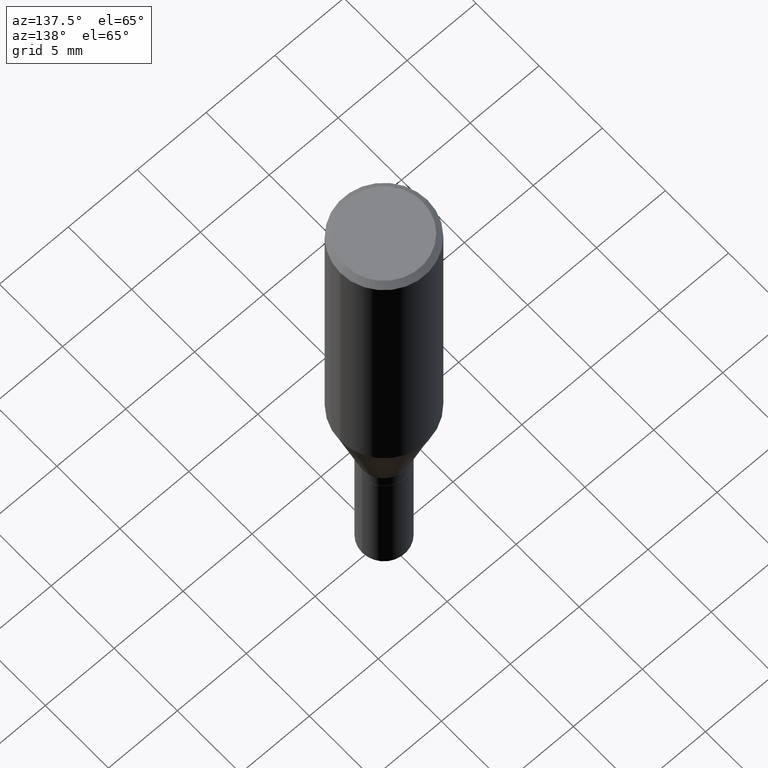
[diagram: clean part render]
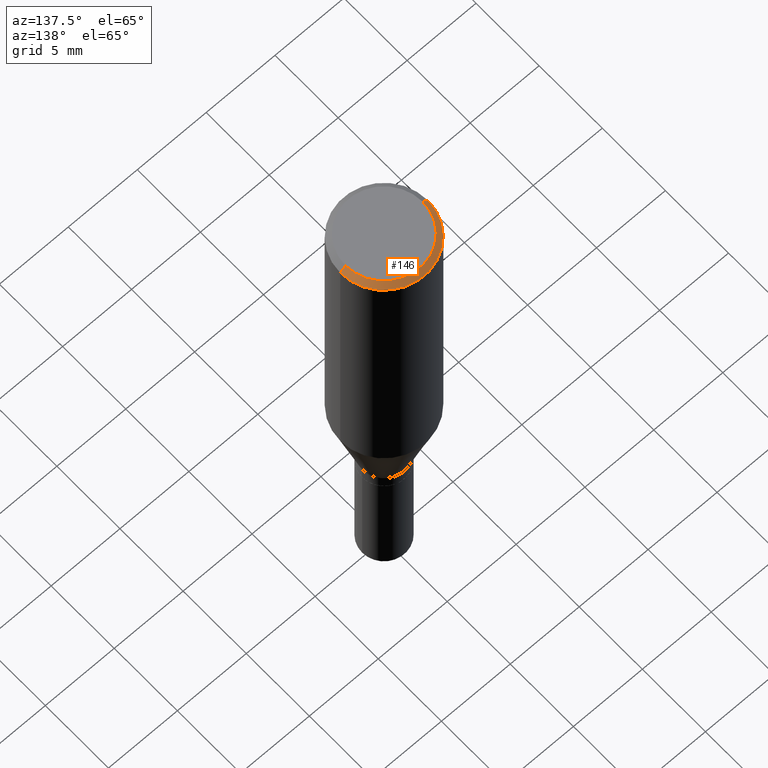
[diagram: same view with one face highlighted and labeled with its STEP entity id]
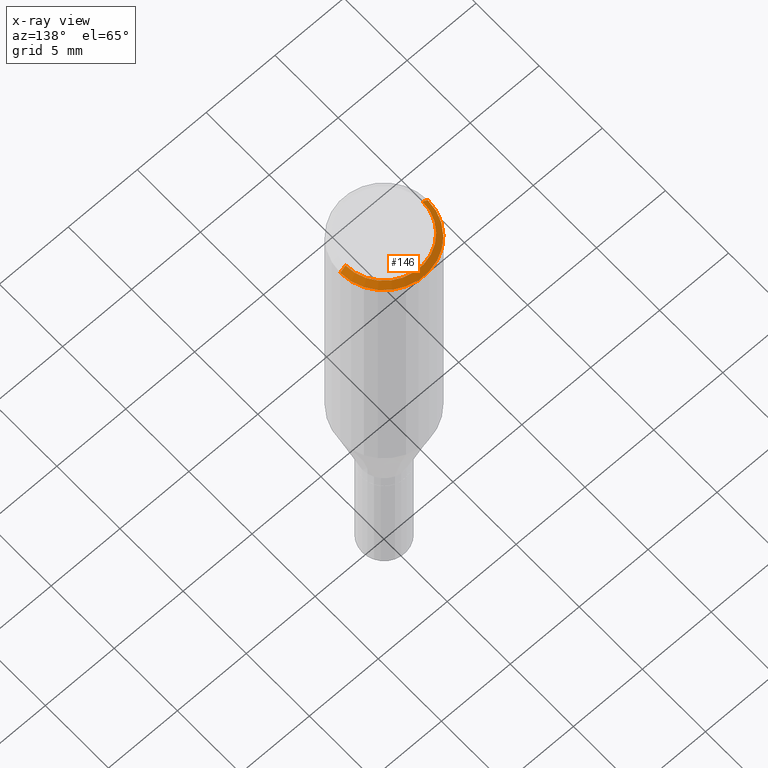
[diagram: x-ray of the same camera — body ghosted, the highlighted face saturated]
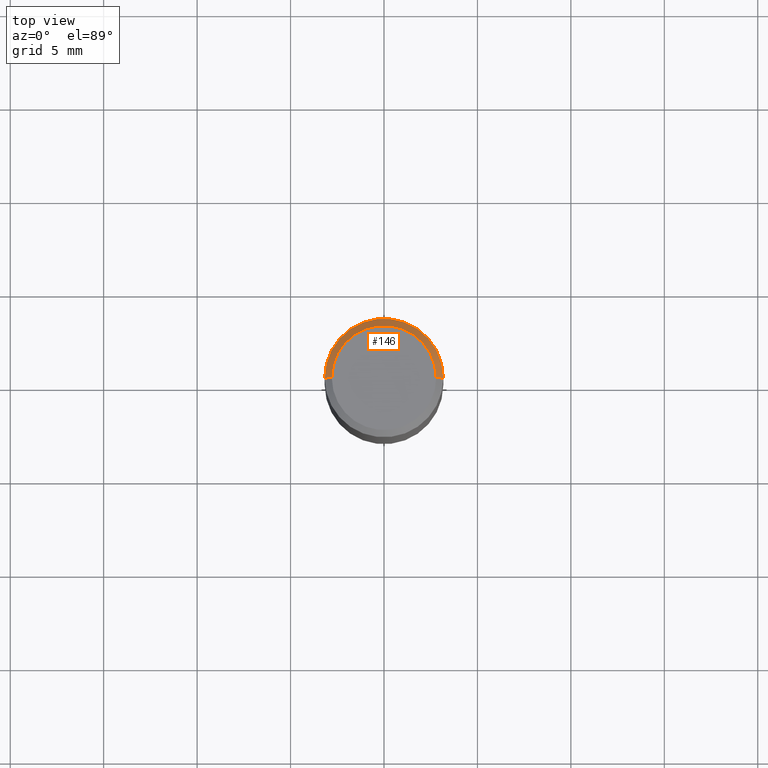
[diagram: same view with one face highlighted and labeled with its STEP entity id]
A machine part, auxiliary view. The second image highlights one B-rep face of the part: STEP entity #146.
The next image is the same camera in x-ray: the body ghosted, the highlighted face saturated — about 0% of this face is hidden behind the body in this view.
A second angle (top view) of the same face is appended — the face is thin or edge-on in the first view.
In plain terms, the highlighted conical surface has half-angle 45 deg.
Its self-contained STEP definition (entity closure, byte-faithful):
#5 = DIRECTION ( 'NONE',  ( -2.445468806185136597E-29, 3.491481338843145583E-15, 1.000000000000000000 ) ) ;
#17 = LINE ( 'NONE', #219, #416 ) ;
#20 = AXIS2_PLACEMENT_3D ( 'NONE', #251, #407, #412 ) ;
#25 = VERTEX_POINT ( 'NONE', #371 ) ;
#42 = EDGE_CURVE ( 'NONE', #345, #25, #86, .T. ) ;
#45 = CARTESIAN_POINT ( 'NONE',  ( 0.1250000000000000000, -9.099344698040885245E-16, -0.01499999999999999944 ) ) ;
#47 = EDGE_CURVE ( 'NONE', #345, #255, #363, .T. ) ;
#58 = ORIENTED_EDGE ( 'NONE', *, *, #42, .F. ) ;
#86 = CIRCLE ( 'NONE', #375, 0.1100000000000000006 ) ;
#88 = CARTESIAN_POINT ( 'NONE',  ( 3.668203209277705088E-31, -5.237222008264718399E-17, -0.01499999999999999944 ) ) ;
#90 = CARTESIAN_POINT ( 'NONE',  ( 0.1250000000000000000, -9.252425547934304180E-16, -0.01499999999999999944 ) ) ;
#117 = EDGE_CURVE ( 'NONE', #255, #160, #217, .T. ) ;
#140 = EDGE_LOOP ( 'NONE', ( #58, #288, #151, #287 ) ) ;
#146 = ADVANCED_FACE ( 'NONE', ( #152 ), #184, .T. ) ;
#151 = ORIENTED_EDGE ( 'NONE', *, *, #117, .T. ) ;
#152 = FACE_OUTER_BOUND ( 'NONE', #140, .T. ) ;
#160 = VERTEX_POINT ( 'NONE', #421 ) ;
#170 = DIRECTION ( 'NONE',  ( 0.7071067811865475727, -7.319954787623256045E-15, -0.7071067811865474617 ) ) ;
#184 = CONICAL_SURFACE ( 'NONE', #449, 0.1250000000000000000, 0.7853981633974483900 ) ;
#194 = DIRECTION ( 'NONE',  ( -0.7071067811865475727, 2.468850131082257455E-15, -0.7071067811865474617 ) ) ;
#217 = CIRCLE ( 'NONE', #20, 0.1250000000000000000 ) ;
#219 = CARTESIAN_POINT ( 'NONE',  ( -0.1250000000000000000, 8.204981146281362596E-16, -0.01499999999999999944 ) ) ;
#251 = CARTESIAN_POINT ( 'NONE',  ( 3.668203209277705088E-31, -5.237222008264718399E-17, -0.01499999999999999944 ) ) ;
#255 = VERTEX_POINT ( 'NONE', #90 ) ;
#287 = ORIENTED_EDGE ( 'NONE', *, *, #450, .F. ) ;
#288 = ORIENTED_EDGE ( 'NONE', *, *, #47, .T. ) ;
#296 = CARTESIAN_POINT ( 'NONE',  ( 1.876754654212523840E-46, -2.679508254694119990E-32, -7.674416657721384454E-18 ) ) ;
#329 = DIRECTION ( 'NONE',  ( 1.000000000000000000, -6.982962677686266711E-15, 4.876001053725558154E-29 ) ) ;
#345 = VERTEX_POINT ( 'NONE', #361 ) ;
#361 = CARTESIAN_POINT ( 'NONE',  ( 0.1100000000000000006, -8.322946247794786836E-16, -7.674416657715788472E-18 ) ) ;
#363 = LINE ( 'NONE', #45, #369 ) ;
#369 = VECTOR ( 'NONE', #170, 39.37007874015748143 ) ;
#371 = CARTESIAN_POINT ( 'NONE',  ( -0.1100000000000000006, 7.943120045868128186E-16, -7.674416657726847932E-18 ) ) ;
#375 = AXIS2_PLACEMENT_3D ( 'NONE', #296, #5, #329 ) ;
#377 = DIRECTION ( 'NONE',  ( 2.445468806185136597E-29, -3.491481338843145583E-15, -1.000000000000000000 ) ) ;
#407 = DIRECTION ( 'NONE',  ( -2.445468806185136597E-29, 3.491481338843145583E-15, 1.000000000000000000 ) ) ;
#412 = DIRECTION ( 'NONE',  ( 1.000000000000000000, -6.982962677686266711E-15, 0.000000000000000000 ) ) ;
#416 = VECTOR ( 'NONE', #194, 39.37007874015748143 ) ;
#419 = DIRECTION ( 'NONE',  ( -1.000000000000000000, 6.982962677686266711E-15, 0.000000000000000000 ) ) ;
#421 = CARTESIAN_POINT ( 'NONE',  ( -0.1250000000000000000, -6.266825026379905098E-16, -0.01499999999999999944 ) ) ;
#449 = AXIS2_PLACEMENT_3D ( 'NONE', #88, #377, #419 ) ;
#450 = EDGE_CURVE ( 'NONE', #25, #160, #17, .T. ) ;